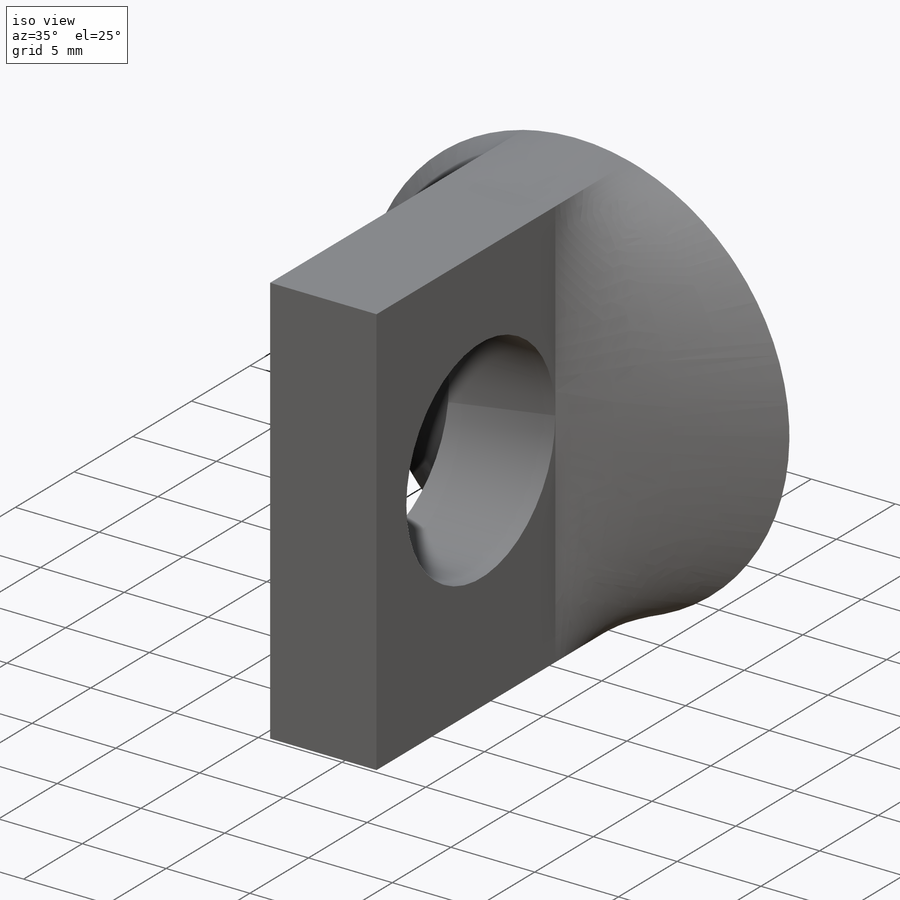
[diagram: iso view]
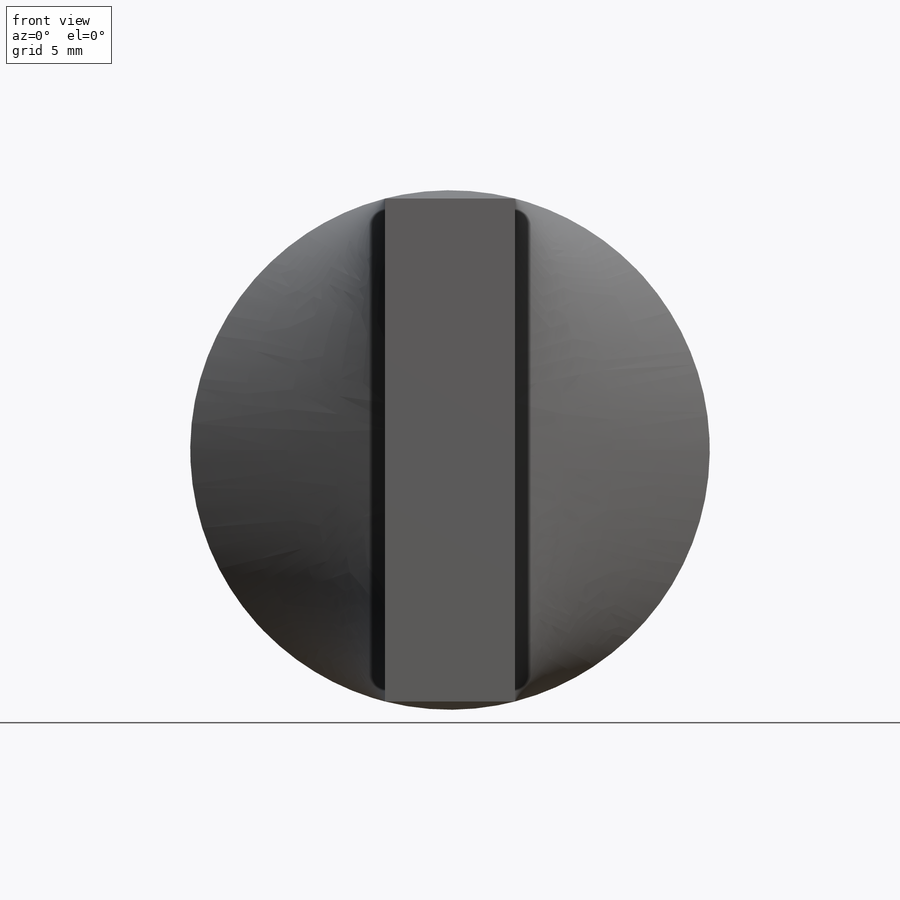
[diagram: front view]
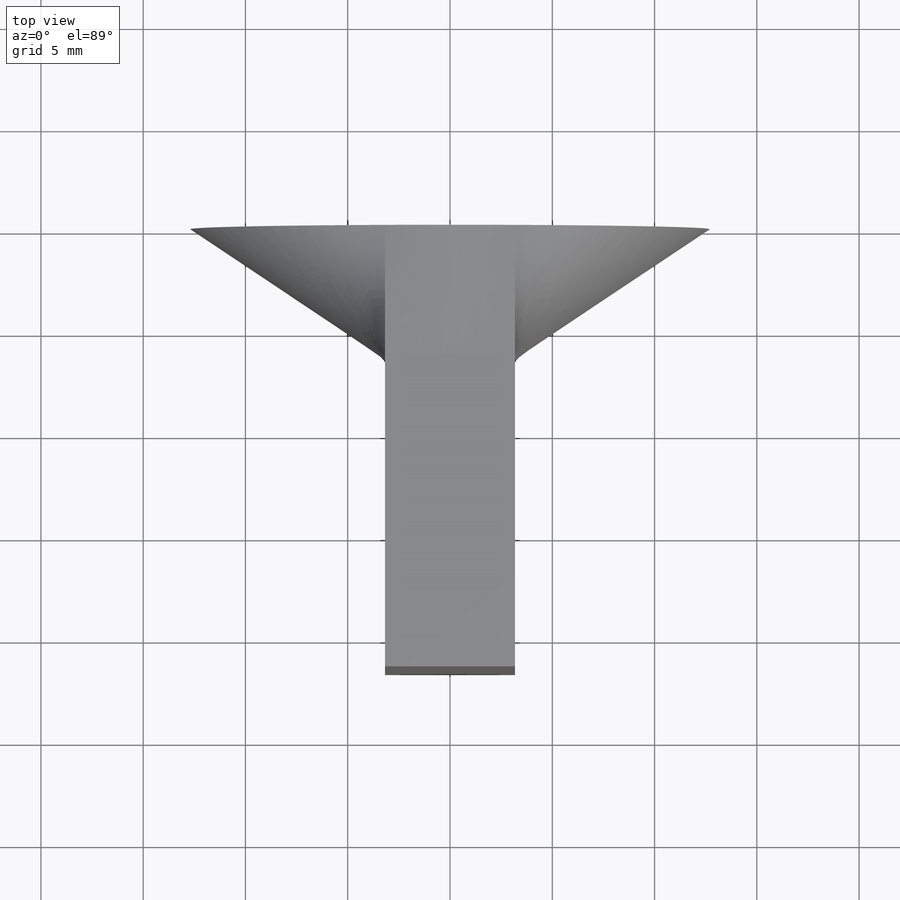
[diagram: top view]
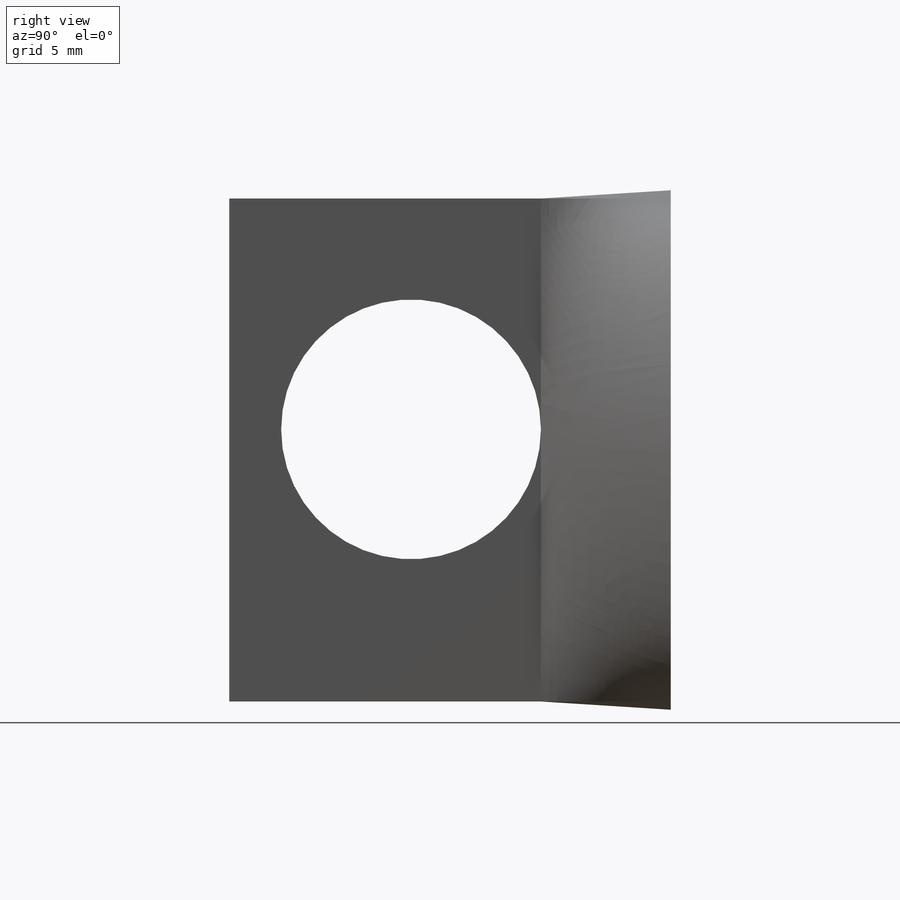
[diagram: right view]
SOLIDWORKS PART (.sldprt)
format: sldprt  version: not decoded by parser v0  size: 191,488 bytes
history: native  units: mm
features: sketch x4, material x1, plane x1, extrude x1, cut_extrude x1 (+14 scaffold rows collapsed)
feature tree (22):
  scaffold x14  (default folders/planes/origin — collapsed)
  material  "Material <not specified>"
  sketch  "Sketch1"  dims[D1=25.4mm]
  plane  "Plane1"  Offset=6.35mm
  sketch  "Sketch2"  dims[D1=6.35mm]
  sketch  "Sketch3"  dims[D1=0.0mm]
  extrude  "Boss-Extrude1"  Depth=15.24mm
  sketch  "Sketch4"  dims[D2=12.7mm D1=12.7mm]
  cut_extrude  "Cut-Extrude1"  [1 undecoded]
decode coverage: 5 of 6 modeling features carry decoded parameters
note: 1 parameter value undecoded
note: suppression state not decoded; provenance and decode notes live in map.json
